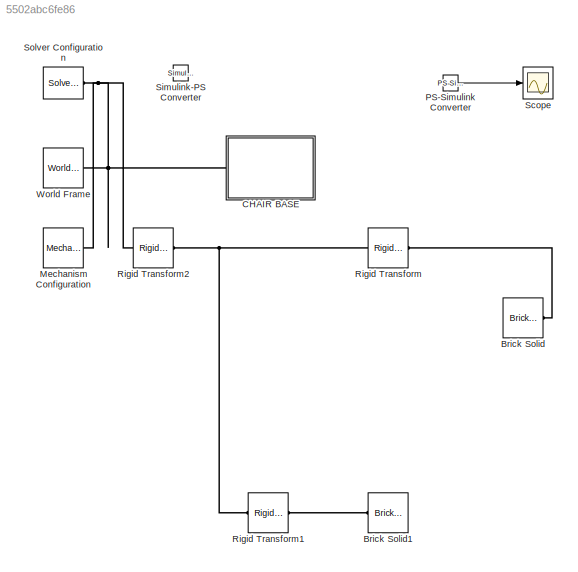
MODEL slx_5502abc6fe86
KIND model
CONFIG AbsTol = auto
CONFIG EnableMultiTasking = off
CONFIG FixedStep = auto
CONFIG MaxStep = auto
CONFIG MinStep = auto
CONFIG RelTol = 1e-3
CONFIG SampleTimeConstraint = Unconstrained
CONFIG Solver = VariableStepAuto
CONFIG SolverName = VariableStepAuto
CONFIG StartTime = 0.0
CONFIG StopTime = 10.0
BLOCK [Reference] Brick Solid  REF=sm_lib/Body Elements/Brick Solid
  Ports = [0, 0, 0, 0, 0, 0, 1]
  SourceBlock = sm_lib/Body Elements/Brick Solid
  SourceProductBaseCode = MS
  SourceType = Brick Solid
BLOCK [Reference] Brick Solid1  REF=sm_lib/Body Elements/Brick Solid
  NameLocation = top
  Ports = [0, 0, 0, 0, 0, 0, 1]
  SourceBlock = sm_lib/Body Elements/Brick Solid
  SourceProductBaseCode = MS
  SourceType = Brick Solid
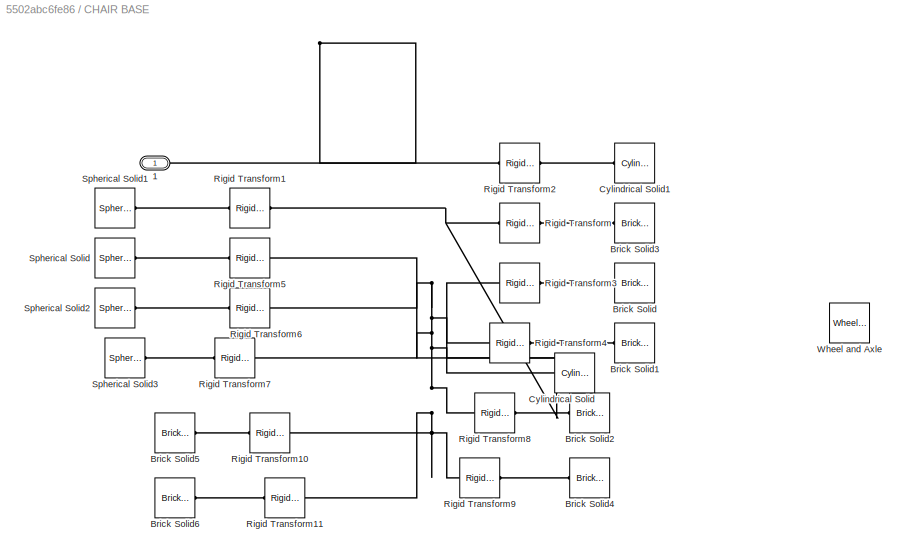
BLOCK [SubSystem] CHAIR BASE
  Ports = [0, 0, 0, 0, 0, 1]
  RequestExecContextInheritance = off
BLOCK [PMIOPort] CHAIR BASE/1
  Side = Left
BLOCK [Reference] CHAIR BASE/Brick Solid  REF=sm_lib/Body Elements/Brick Solid
  NameLocation = top
  Ports = [0, 0, 0, 0, 0, 0, 1]
  SourceBlock = sm_lib/Body Elements/Brick Solid
  SourceProductBaseCode = MS
  SourceType = Brick Solid
BLOCK [Reference] CHAIR BASE/Brick Solid1  REF=sm_lib/Body Elements/Brick Solid
  Commented = on
  NameLocation = top
  Ports = [0, 0, 0, 0, 0, 0, 1]
  SourceBlock = sm_lib/Body Elements/Brick Solid
  SourceProductBaseCode = MS
  SourceType = Brick Solid
BLOCK [Reference] CHAIR BASE/Brick Solid2  REF=sm_lib/Body Elements/Brick Solid
  Ports = [0, 0, 0, 0, 0, 0, 1]
  SourceBlock = sm_lib/Body Elements/Brick Solid
  SourceProductBaseCode = MS
  SourceType = Brick Solid
BLOCK [Reference] CHAIR BASE/Brick Solid3  REF=sm_lib/Body Elements/Brick Solid
  NameLocation = top
  Ports = [0, 0, 0, 0, 0, 0, 1]
  SourceBlock = sm_lib/Body Elements/Brick Solid
  SourceProductBaseCode = MS
  SourceType = Brick Solid
BLOCK [Reference] CHAIR BASE/Brick Solid4  REF=sm_lib/Body Elements/Brick Solid
  Ports = [0, 0, 0, 0, 0, 0, 1]
  SourceBlock = sm_lib/Body Elements/Brick Solid
  SourceProductBaseCode = MS
  SourceType = Brick Solid
BLOCK [Reference] CHAIR BASE/Brick Solid5  REF=sm_lib/Body Elements/Brick Solid
  Ports = [0, 0, 0, 0, 0, 0, 1]
  SourceBlock = sm_lib/Body Elements/Brick Solid
  SourceProductBaseCode = MS
  SourceType = Brick Solid
BLOCK [Reference] CHAIR BASE/Brick Solid6  REF=sm_lib/Body Elements/Brick Solid
  Ports = [0, 0, 0, 0, 0, 0, 1]
  SourceBlock = sm_lib/Body Elements/Brick Solid
  SourceProductBaseCode = MS
  SourceType = Brick Solid
BLOCK [Reference] CHAIR BASE/Cylindrical Solid  REF=sm_lib/Body Elements/Cylindrical Solid
  NameLocation = top
  Ports = [0, 0, 0, 0, 0, 0, 1]
  SourceBlock = sm_lib/Body Elements/Cylindrical Solid
  SourceProductBaseCode = MS
  SourceType = Cylindrical Solid
BLOCK [Reference] CHAIR BASE/Cylindrical Solid1  REF=sm_lib/Body Elements/Cylindrical Solid
  NameLocation = top
  Ports = [0, 0, 0, 0, 0, 0, 1]
  SourceBlock = sm_lib/Body Elements/Cylindrical Solid
  SourceProductBaseCode = MS
  SourceType = Cylindrical Solid
BLOCK [Reference] CHAIR BASE/Rigid Transform  REF=sm_lib/Frames and
Transforms/Rigid
Transform
  Ports = [0, 0, 0, 0, 0, 1, 1]
  SourceBlock = sm_lib/Frames and\nTransforms/Rigid\nTransform
  SourceProductBaseCode = MS
  SourceType = Rigid\nTransform
BLOCK [Reference] CHAIR BASE/Rigid Transform1  REF=sm_lib/Frames and
Transforms/Rigid
Transform
  NameLocation = top
  Ports = [0, 0, 0, 0, 0, 1, 1]
  SourceBlock = sm_lib/Frames and\nTransforms/Rigid\nTransform
  SourceProductBaseCode = MS
  SourceType = Rigid\nTransform
BLOCK [Reference] CHAIR BASE/Rigid Transform10  REF=sm_lib/Frames and
Transforms/Rigid
Transform
  Ports = [0, 0, 0, 0, 0, 1, 1]
  SourceBlock = sm_lib/Frames and\nTransforms/Rigid\nTransform
  SourceProductBaseCode = MS
  SourceType = Rigid\nTransform
BLOCK [Reference] CHAIR BASE/Rigid Transform11  REF=sm_lib/Frames and
Transforms/Rigid
Transform
  Ports = [0, 0, 0, 0, 0, 1, 1]
  SourceBlock = sm_lib/Frames and\nTransforms/Rigid\nTransform
  SourceProductBaseCode = MS
  SourceType = Rigid\nTransform
BLOCK [Reference] CHAIR BASE/Rigid Transform2  REF=sm_lib/Frames and
Transforms/Rigid
Transform
  Ports = [0, 0, 0, 0, 0, 1, 1]
  SourceBlock = sm_lib/Frames and\nTransforms/Rigid\nTransform
  SourceProductBaseCode = MS
  SourceType = Rigid\nTransform
BLOCK [Reference] CHAIR BASE/Rigid Transform3  REF=sm_lib/Frames and
Transforms/Rigid
Transform
  Ports = [0, 0, 0, 0, 0, 1, 1]
  SourceBlock = sm_lib/Frames and\nTransforms/Rigid\nTransform
  SourceProductBaseCode = MS
  SourceType = Rigid\nTransform
BLOCK [Reference] CHAIR BASE/Rigid Transform4  REF=sm_lib/Frames and
Transforms/Rigid
Transform
  Commented = on
  Ports = [0, 0, 0, 0, 0, 1, 1]
  SourceBlock = sm_lib/Frames and\nTransforms/Rigid\nTransform
  SourceProductBaseCode = MS
  SourceType = Rigid\nTransform
BLOCK [Reference] CHAIR BASE/Rigid Transform5  REF=sm_lib/Frames and
Transforms/Rigid
Transform
  NameLocation = top
  Ports = [0, 0, 0, 0, 0, 1, 1]
  SourceBlock = sm_lib/Frames and\nTransforms/Rigid\nTransform
  SourceProductBaseCode = MS
  SourceType = Rigid\nTransform
BLOCK [Reference] CHAIR BASE/Rigid Transform6  REF=sm_lib/Frames and
Transforms/Rigid
Transform
  Ports = [0, 0, 0, 0, 0, 1, 1]
  SourceBlock = sm_lib/Frames and\nTransforms/Rigid\nTransform
  SourceProductBaseCode = MS
  SourceType = Rigid\nTransform
BLOCK [Reference] CHAIR BASE/Rigid Transform7  REF=sm_lib/Frames and
Transforms/Rigid
Transform
  Ports = [0, 0, 0, 0, 0, 1, 1]
  SourceBlock = sm_lib/Frames and\nTransforms/Rigid\nTransform
  SourceProductBaseCode = MS
  SourceType = Rigid\nTransform
BLOCK [Reference] CHAIR BASE/Rigid Transform8  REF=sm_lib/Frames and
Transforms/Rigid
Transform
  Ports = [0, 0, 0, 0, 0, 1, 1]
  SourceBlock = sm_lib/Frames and\nTransforms/Rigid\nTransform
  SourceProductBaseCode = MS
  SourceType = Rigid\nTransform
BLOCK [Reference] CHAIR BASE/Rigid Transform9  REF=sm_lib/Frames and
Transforms/Rigid
Transform
  Ports = [0, 0, 0, 0, 0, 1, 1]
  SourceBlock = sm_lib/Frames and\nTransforms/Rigid\nTransform
  SourceProductBaseCode = MS
  SourceType = Rigid\nTransform
BLOCK [Reference] CHAIR BASE/Spherical Solid  REF=sm_lib/Body Elements/Spherical Solid
  Ports = [0, 0, 0, 0, 0, 0, 1]
  SourceBlock = sm_lib/Body Elements/Spherical Solid
  SourceProductBaseCode = MS
  SourceType = Spherical Solid
BLOCK [Reference] CHAIR BASE/Spherical Solid1  REF=sm_lib/Body Elements/Spherical Solid
  Ports = [0, 0, 0, 0, 0, 0, 1]
  SourceBlock = sm_lib/Body Elements/Spherical Solid
  SourceProductBaseCode = MS
  SourceType = Spherical Solid
BLOCK [Reference] CHAIR BASE/Spherical Solid2  REF=sm_lib/Body Elements/Spherical Solid
  Ports = [0, 0, 0, 0, 0, 0, 1]
  SourceBlock = sm_lib/Body Elements/Spherical Solid
  SourceProductBaseCode = MS
  SourceType = Spherical Solid
BLOCK [Reference] CHAIR BASE/Spherical Solid3  REF=sm_lib/Body Elements/Spherical Solid
  Ports = [0, 0, 0, 0, 0, 0, 1]
  SourceBlock = sm_lib/Body Elements/Spherical Solid
  SourceProductBaseCode = MS
  SourceType = Spherical Solid
BLOCK [Reference] CHAIR BASE/Wheel and Axle  REF=fl_lib/Mechanical/Mechanisms/Wheel and Axle
  Ports = [0, 0, 0, 0, 0, 1, 1]
  SourceBlock = fl_lib/Mechanical/Mechanisms/Wheel and Axle
  SourceProductBaseCode = SS
  SourceType = Wheel and Axle
BLOCK [Reference] Mechanism Configuration  REF=sm_lib/Utilities/Mechanism
Configuration
  Ports = [0, 0, 0, 0, 0, 0, 1]
  SourceBlock = sm_lib/Utilities/Mechanism\nConfiguration
  SourceProductBaseCode = MS
  SourceType = Mechanism\nConfiguration
BLOCK [Reference] PS-Simulink Converter  REF=nesl_utility/PS-Simulink
Converter
  Ports = [0, 1, 0, 0, 0, 1]
  SourceBlock = nesl_utility/PS-Simulink\nConverter
  SourceProductBaseCode = MT,SS
  SourceType = PS-Simulink\nConverter
BLOCK [Reference] Rigid Transform  REF=sm_lib/Frames and
Transforms/Rigid
Transform
  Ports = [0, 0, 0, 0, 0, 1, 1]
  SourceBlock = sm_lib/Frames and\nTransforms/Rigid\nTransform
  SourceProductBaseCode = MS
  SourceType = Rigid\nTransform
BLOCK [Reference] Rigid Transform1  REF=sm_lib/Frames and
Transforms/Rigid
Transform
  Ports = [0, 0, 0, 0, 0, 1, 1]
  SourceBlock = sm_lib/Frames and\nTransforms/Rigid\nTransform
  SourceProductBaseCode = MS
  SourceType = Rigid\nTransform
BLOCK [Reference] Rigid Transform2  REF=sm_lib/Frames and
Transforms/Rigid
Transform
  Ports = [0, 0, 0, 0, 0, 1, 1]
  SourceBlock = sm_lib/Frames and\nTransforms/Rigid\nTransform
  SourceProductBaseCode = MS
  SourceType = Rigid\nTransform
BLOCK [Scope] Scope
  Floating = off
  NumInputPorts = 1
  Ports = [1]
  ScopeSpecificationString = Simulink.scopes.TimeScopeBlockCfg('CurrentConfiguration', extmgr.ConfigurationSet(extmgr.Configuration('Core','General UI',true),extmgr.Configuration('Core','Source UI',true),extmgr.Configuration('Sources','WiredSimulink',true),extmgr.Configuration('Visuals','Time Domain',true),extmgr.Configuration('Tools','Plot Navigation',true),extmgr.Configuration('Tools','Measurements',true,'Version','2019b'))...<+19ch>
BLOCK [Reference] Simulink-PS Converter  REF=nesl_utility/Simulink-PS
Converter
  Ports = [1, 0, 0, 0, 0, 0, 1]
  SourceBlock = nesl_utility/Simulink-PS\nConverter
  SourceProductBaseCode = MT,SS
  SourceType = Simulink-PS\nConverter
BLOCK [Reference] Solver Configuration  REF=nesl_utility/Solver
Configuration
  Ports = [0, 0, 0, 0, 0, 0, 1]
  SourceBlock = nesl_utility/Solver\nConfiguration
  SourceProductBaseCode = MT,SS
  SourceType = Solver\nConfiguration
BLOCK [Reference] World Frame  REF=sm_lib/Frames and
Transforms/World Frame
  Ports = [0, 0, 0, 0, 0, 0, 1]
  SourceBlock = sm_lib/Frames and\nTransforms/World Frame
  SourceProductBaseCode = MS
  SourceType = World Frame
LINE PS-Simulink Converter:1 -> Scope:1
PLINE Brick Solid1:RConn1 -- Rigid Transform1:RConn1
PLINE Brick Solid:RConn1 -- Rigid Transform:RConn1
PNET net1: CHAIR BASE/1:RConn1 -- CHAIR BASE/Cylindrical Solid:RConn1 -- CHAIR BASE/Rigid Transform10:LConn1 -- CHAIR BASE/Rigid Transform11:LConn1 -- CHAIR BASE/Rigid Transform1:LConn1 -- CHAIR BASE/Rigid Transform2:LConn1 -- CHAIR BASE/Rigid Transform3:LConn1 -- CHAIR BASE/Rigid Transform4:LConn1 -- CHAIR BASE/Rigid Transform5:LConn1 -- CHAIR BASE/Rigid Transform6:LConn1 -- CHAIR BASE/Rigid Transform7:LConn1 -- CHAIR BASE/Rigid Transform8:LConn1 -- CHAIR BASE/Rigid Transform9:LConn1 -- CHAIR BASE/Rigid Transform:LConn1
PLINE CHAIR BASE/Brick Solid1:RConn1 -- CHAIR BASE/Rigid Transform4:RConn1
PLINE CHAIR BASE/Brick Solid2:RConn1 -- CHAIR BASE/Rigid Transform8:RConn1
PLINE CHAIR BASE/Brick Solid3:RConn1 -- CHAIR BASE/Rigid Transform:RConn1
PLINE CHAIR BASE/Brick Solid4:RConn1 -- CHAIR BASE/Rigid Transform9:RConn1
PLINE CHAIR BASE/Brick Solid5:RConn1 -- CHAIR BASE/Rigid Transform10:RConn1
PLINE CHAIR BASE/Brick Solid6:RConn1 -- CHAIR BASE/Rigid Transform11:RConn1
PLINE CHAIR BASE/Brick Solid:RConn1 -- CHAIR BASE/Rigid Transform3:RConn1
PLINE CHAIR BASE/Cylindrical Solid1:RConn1 -- CHAIR BASE/Rigid Transform2:RConn1
PLINE CHAIR BASE/Rigid Transform1:RConn1 -- CHAIR BASE/Spherical Solid1:RConn1
PLINE CHAIR BASE/Rigid Transform5:RConn1 -- CHAIR BASE/Spherical Solid:RConn1
PLINE CHAIR BASE/Rigid Transform6:RConn1 -- CHAIR BASE/Spherical Solid2:RConn1
PLINE CHAIR BASE/Rigid Transform7:RConn1 -- CHAIR BASE/Spherical Solid3:RConn1
PNET net2: CHAIR BASE:LConn1 -- Mechanism Configuration:RConn1 -- Rigid Transform2:LConn1 -- Solver Configuration:RConn1 -- World Frame:RConn1
PNET net3: Rigid Transform1:LConn1 -- Rigid Transform2:RConn1 -- Rigid Transform:LConn1
note: PNET lines group multi-terminal physical nets as a canonical sorted terminal list (undirected conserving connections); 2-terminal nets keep the pairwise PLINE form
